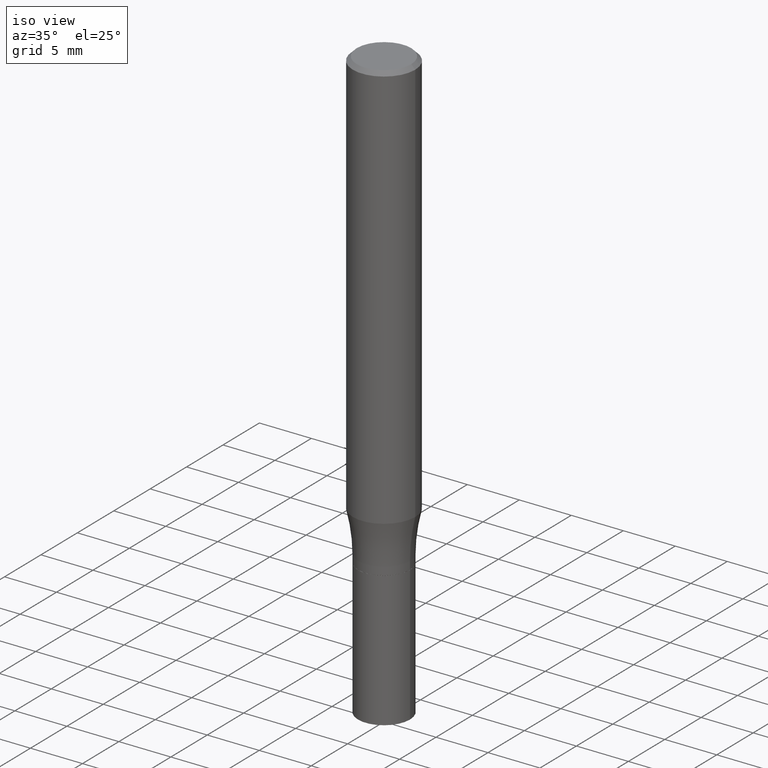
[diagram: clean part render]
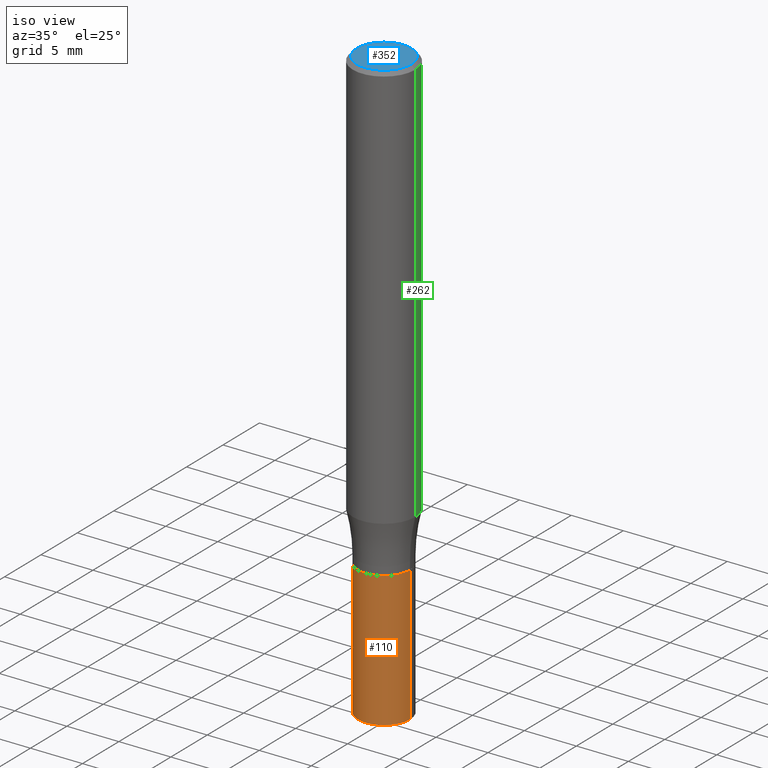
[diagram: same view with three faces highlighted in distinct colors, each labeled with its STEP entity id]
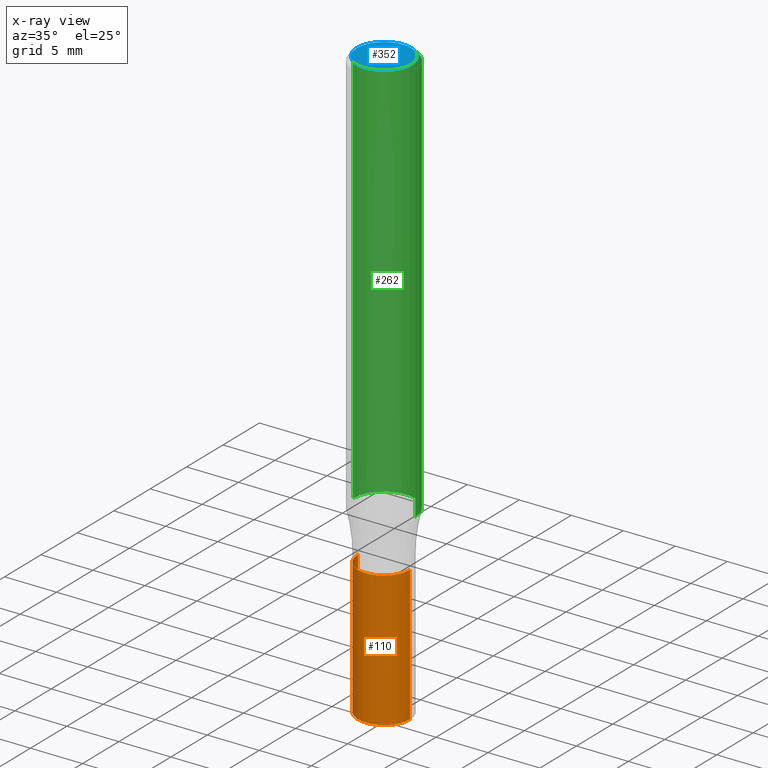
[diagram: x-ray of the same camera — body ghosted, the three highlighted faces saturated]
A machine part, iso view with three faces highlighted in distinct colors.
The next image is the same camera in x-ray (body ghosted, the three faces saturated) — at least one of them is partly hidden behind the body in this view.
Their STEP definitions:

[orange] entity #110 — the highlighted cylindrical surface (edge-blend (fillet) strip) has radius 2.5006 mm, axis along (-0, 0, 1).
#8 = VECTOR ( 'NONE', #30, 39.37007874015748143 ) ;
#30 = DIRECTION ( 'NONE',  ( -2.445468806185136877E-29, 3.491481338843145188E-15, 1.000000000000000000 ) ) ;
#51 = LINE ( 'NONE', #332, #8 ) ;
#54 = DIRECTION ( 'NONE',  ( -2.445468806185136597E-29, 3.491481338843145583E-15, 1.000000000000000000 ) ) ;
#59 = DIRECTION ( 'NONE',  ( -2.445468806185136597E-29, 3.491481338843145583E-15, 1.000000000000000000 ) ) ;
#62 = CIRCLE ( 'NONE', #251, 0.09845000000000000973 ) ;
#71 = DIRECTION ( 'NONE',  ( -2.445468806185136877E-29, 3.491481338843145188E-15, 1.000000000000000000 ) ) ;
#88 = FACE_OUTER_BOUND ( 'NONE', #419, .T. ) ;
#110 = ADVANCED_FACE ( 'NONE', ( #88 ), #135, .T. ) ;
#133 = CARTESIAN_POINT ( 'NONE',  ( 0.09845000000000000973, -6.735765798896194427E-15, -1.732299999999999951 ) ) ;
#135 = CYLINDRICAL_SURFACE ( 'NONE', #284, 0.09845000000000000973 ) ;
#154 = CARTESIAN_POINT ( 'NONE',  ( -0.09845000000000000973, -6.242233874532123993E-15, -1.732299999999999951 ) ) ;
#161 = CARTESIAN_POINT ( 'NONE',  ( 0.09845000000000000973, -8.522705948116114900E-15, -2.244099999999999984 ) ) ;
#164 = CARTESIAN_POINT ( 'NONE',  ( 0.000000000000000000, 0.000000000000000000, 0.000000000000000000 ) ) ;
#177 = CARTESIAN_POINT ( 'NONE',  ( 5.487876547960064752E-29, -7.835233272497902340E-15, -2.244099999999999984 ) ) ;
#182 = EDGE_CURVE ( 'NONE', #197, #307, #62, .T. ) ;
#186 = VERTEX_POINT ( 'NONE', #161 ) ;
#189 = AXIS2_PLACEMENT_3D ( 'NONE', #177, #389, #239 ) ;
#190 = ORIENTED_EDGE ( 'NONE', *, *, #315, .F. ) ;
#197 = VERTEX_POINT ( 'NONE', #154 ) ;
#198 = DIRECTION ( 'NONE',  ( 1.000000000000000000, -6.982962677686265133E-15, 0.000000000000000000 ) ) ;
#228 = CARTESIAN_POINT ( 'NONE',  ( 4.236285612954512392E-29, -6.048293123277981078E-15, -1.732299999999999951 ) ) ;
#236 = EDGE_CURVE ( 'NONE', #186, #307, #51, .T. ) ;
#239 = DIRECTION ( 'NONE',  ( 1.000000000000000000, -6.982962677686265133E-15, 0.000000000000000000 ) ) ;
#251 = AXIS2_PLACEMENT_3D ( 'NONE', #228, #54, #198 ) ;
#284 = AXIS2_PLACEMENT_3D ( 'NONE', #164, #59, #426 ) ;
#307 = VERTEX_POINT ( 'NONE', #133 ) ;
#313 = EDGE_CURVE ( 'NONE', #359, #186, #462, .T. ) ;
#314 = CARTESIAN_POINT ( 'NONE',  ( -0.09845000000000000973, 6.995293233558187021E-16, -4.842691596355954742E-30 ) ) ;
#315 = EDGE_CURVE ( 'NONE', #359, #197, #317, .T. ) ;
#317 = LINE ( 'NONE', #314, #366 ) ;
#332 = CARTESIAN_POINT ( 'NONE',  ( 0.09845000000000000973, -6.874726756182130531E-16, 4.800596035771099214E-30 ) ) ;
#335 = ORIENTED_EDGE ( 'NONE', *, *, #313, .T. ) ;
#359 = VERTEX_POINT ( 'NONE', #445 ) ;
#366 = VECTOR ( 'NONE', #71, 39.37007874015748143 ) ;
#389 = DIRECTION ( 'NONE',  ( -2.445468806185136597E-29, 3.491481338843145583E-15, 1.000000000000000000 ) ) ;
#419 = EDGE_LOOP ( 'NONE', ( #190, #335, #451, #444 ) ) ;
#426 = DIRECTION ( 'NONE',  ( 1.000000000000000000, -6.982962677686266711E-15, 4.876176775795935793E-29 ) ) ;
#444 = ORIENTED_EDGE ( 'NONE', *, *, #182, .F. ) ;
#445 = CARTESIAN_POINT ( 'NONE',  ( -0.09845000000000000973, -6.242233874532123993E-15, -2.244099999999999984 ) ) ;
#451 = ORIENTED_EDGE ( 'NONE', *, *, #236, .T. ) ;
#462 = CIRCLE ( 'NONE', #189, 0.09845000000000000973 ) ;

[blue] entity #352 — the highlighted planar face has unit normal (0, -0, -1).
#22 = VERTEX_POINT ( 'NONE', #384 ) ;
#26 = DIRECTION ( 'NONE',  ( -1.000000000000000000, 6.982962677686265922E-15, -4.876176775795935793E-29 ) ) ;
#46 = CARTESIAN_POINT ( 'NONE',  ( 0.1031000000000000111, -7.849571885948555664E-16, -3.585672687244918133E-16 ) ) ;
#50 = EDGE_LOOP ( 'NONE', ( #416, #169 ) ) ;
#64 = CARTESIAN_POINT ( 'NONE',  ( 8.768650705847610599E-45, -1.251930927471537114E-30, -3.585672687244970888E-16 ) ) ;
#98 = DIRECTION ( 'NONE',  ( -2.445468806185136597E-29, 3.491481338843145583E-15, 1.000000000000000000 ) ) ;
#142 = CARTESIAN_POINT ( 'NONE',  ( 7.199434520694541042E-16, 0.1031000000000000111, -5.392553603969768538E-16 ) ) ;
#166 = AXIS2_PLACEMENT_3D ( 'NONE', #64, #98, #211 ) ;
#169 = ORIENTED_EDGE ( 'NONE', *, *, #272, .T. ) ;
#211 = DIRECTION ( 'NONE',  ( 1.000000000000000000, -6.982962677686265922E-15, 4.883331232093008327E-29 ) ) ;
#230 = VERTEX_POINT ( 'NONE', #46 ) ;
#266 = AXIS2_PLACEMENT_3D ( 'NONE', #142, #381, #26 ) ;
#272 = EDGE_CURVE ( 'NONE', #230, #22, #331, .T. ) ;
#312 = CIRCLE ( 'NONE', #341, 0.1031000000000000111 ) ;
#331 = CIRCLE ( 'NONE', #166, 0.1031000000000000111 ) ;
#341 = AXIS2_PLACEMENT_3D ( 'NONE', #385, #346, #357 ) ;
#346 = DIRECTION ( 'NONE',  ( -2.445468806185136597E-29, 3.491481338843145583E-15, 1.000000000000000000 ) ) ;
#350 = FACE_OUTER_BOUND ( 'NONE', #50, .T. ) ;
#351 = EDGE_CURVE ( 'NONE', #22, #230, #312, .T. ) ;
#352 = ADVANCED_FACE ( 'NONE', ( #350 ), #468, .F. ) ;
#357 = DIRECTION ( 'NONE',  ( 1.000000000000000000, -6.982962677686265922E-15, 4.883331232093008327E-29 ) ) ;
#381 = DIRECTION ( 'NONE',  ( 2.438088387897960049E-29, -3.491481338843145188E-15, -1.000000000000000000 ) ) ;
#384 = CARTESIAN_POINT ( 'NONE',  ( -0.1031000000000000111, 7.461295621107768549E-16, -3.585672687245022657E-16 ) ) ;
#385 = CARTESIAN_POINT ( 'NONE',  ( 8.768650705847610599E-45, -1.251930927471537114E-30, -3.585672687244970888E-16 ) ) ;
#416 = ORIENTED_EDGE ( 'NONE', *, *, #351, .T. ) ;
#468 = PLANE ( 'NONE',  #266 ) ;

[green] entity #262 — the highlighted cylindrical surface (partial cylindrical patch) has radius 2.9997 mm, axis along (-0, 0, 1).
#16 = VERTEX_POINT ( 'NONE', #301 ) ;
#17 = CARTESIAN_POINT ( 'NONE',  ( -0.1180999999999999966, 7.723156721521009862E-16, -0.01499999999999999944 ) ) ;
#32 = CARTESIAN_POINT ( 'NONE',  ( 3.779747038470435747E-29, -5.396477034174070739E-15, -1.545612452267071113 ) ) ;
#45 = AXIS2_PLACEMENT_3D ( 'NONE', #417, #449, #303 ) ;
#52 = AXIS2_PLACEMENT_3D ( 'NONE', #281, #100, #68 ) ;
#67 = CARTESIAN_POINT ( 'NONE',  ( -0.1181000000000000105, 8.391509709326783943E-16, -5.809262341591044484E-30 ) ) ;
#68 = DIRECTION ( 'NONE',  ( 1.000000000000000000, -6.982962677686267499E-15, 4.876176775795936353E-29 ) ) ;
#69 = FACE_OUTER_BOUND ( 'NONE', #131, .T. ) ;
#75 = VERTEX_POINT ( 'NONE', #200 ) ;
#87 = VERTEX_POINT ( 'NONE', #17 ) ;
#100 = DIRECTION ( 'NONE',  ( -2.445468806185136597E-29, 3.491481338843145583E-15, 1.000000000000000000 ) ) ;
#108 = DIRECTION ( 'NONE',  ( -2.445468806185136877E-29, 3.491481338843145188E-15, 1.000000000000000000 ) ) ;
#125 = VECTOR ( 'NONE', #108, 39.37007874015748143 ) ;
#131 = EDGE_LOOP ( 'NONE', ( #162, #226, #206, #227 ) ) ;
#162 = ORIENTED_EDGE ( 'NONE', *, *, #246, .T. ) ;
#176 = EDGE_CURVE ( 'NONE', #75, #87, #265, .T. ) ;
#179 = AXIS2_PLACEMENT_3D ( 'NONE', #32, #435, #390 ) ;
#200 = CARTESIAN_POINT ( 'NONE',  ( -0.1181000000000000660, -4.557326063241392542E-15, -1.545612452267071113 ) ) ;
#206 = ORIENTED_EDGE ( 'NONE', *, *, #215, .F. ) ;
#210 = DIRECTION ( 'NONE',  ( -2.445468806185136877E-29, 3.491481338843145188E-15, 1.000000000000000000 ) ) ;
#213 = CYLINDRICAL_SURFACE ( 'NONE', #52, 0.1181000000000000105 ) ;
#215 = EDGE_CURVE ( 'NONE', #16, #87, #276, .T. ) ;
#222 = LINE ( 'NONE', #439, #125 ) ;
#226 = ORIENTED_EDGE ( 'NONE', *, *, #176, .T. ) ;
#227 = ORIENTED_EDGE ( 'NONE', *, *, #373, .F. ) ;
#240 = VERTEX_POINT ( 'NONE', #432 ) ;
#246 = EDGE_CURVE ( 'NONE', #240, #75, #421, .T. ) ;
#260 = VECTOR ( 'NONE', #210, 39.37007874015748143 ) ;
#262 = ADVANCED_FACE ( 'NONE', ( #69 ), #213, .T. ) ;
#265 = LINE ( 'NONE', #67, #260 ) ;
#276 = CIRCLE ( 'NONE', #45, 0.1180999999999999966 ) ;
#281 = CARTESIAN_POINT ( 'NONE',  ( 0.000000000000000000, 0.000000000000000000, 0.000000000000000000 ) ) ;
#301 = CARTESIAN_POINT ( 'NONE',  ( 0.1180999999999999966, -8.625970336194650129E-16, -0.01499999999999999944 ) ) ;
#303 = DIRECTION ( 'NONE',  ( 1.000000000000000000, -6.982962677686266711E-15, 0.000000000000000000 ) ) ;
#373 = EDGE_CURVE ( 'NONE', #240, #16, #222, .T. ) ;
#390 = DIRECTION ( 'NONE',  ( 1.000000000000000000, -6.982962677686262766E-15, 0.000000000000000000 ) ) ;
#417 = CARTESIAN_POINT ( 'NONE',  ( 3.668203209277705088E-31, -5.237222008264718399E-17, -0.01499999999999999944 ) ) ;
#421 = CIRCLE ( 'NONE', #179, 0.1181000000000000383 ) ;
#432 = CARTESIAN_POINT ( 'NONE',  ( 0.1181000000000000660, -6.221164926408819001E-15, -1.545612452267071113 ) ) ;
#435 = DIRECTION ( 'NONE',  ( -2.445468806185136597E-29, 3.491481338843145583E-15, 1.000000000000000000 ) ) ;
#439 = CARTESIAN_POINT ( 'NONE',  ( 0.1181000000000000105, -8.246878922347482626E-16, 5.758764772215001141E-30 ) ) ;
#449 = DIRECTION ( 'NONE',  ( -2.445468806185136597E-29, 3.491481338843145583E-15, 1.000000000000000000 ) ) ;